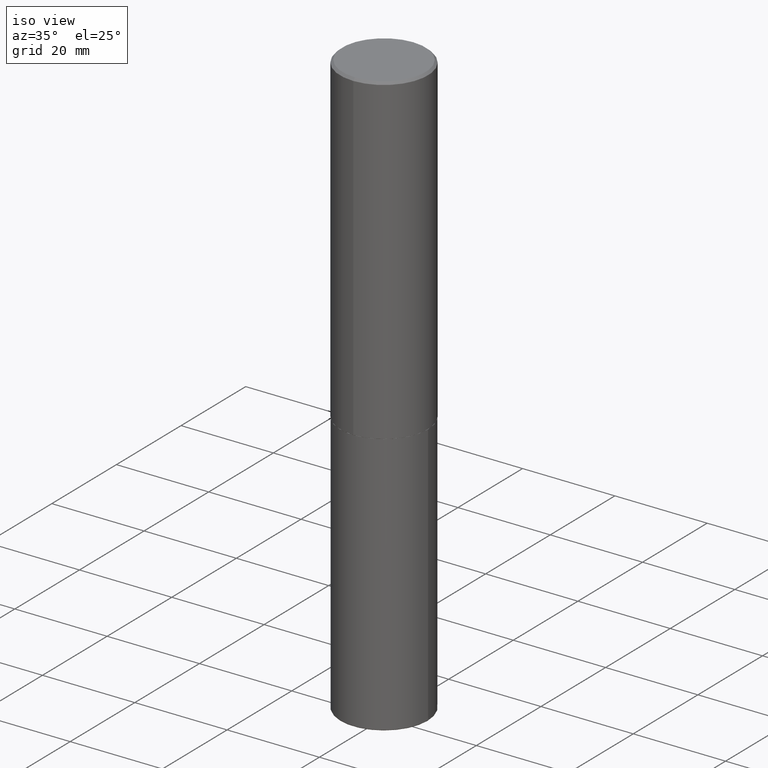
[diagram: clean part render]
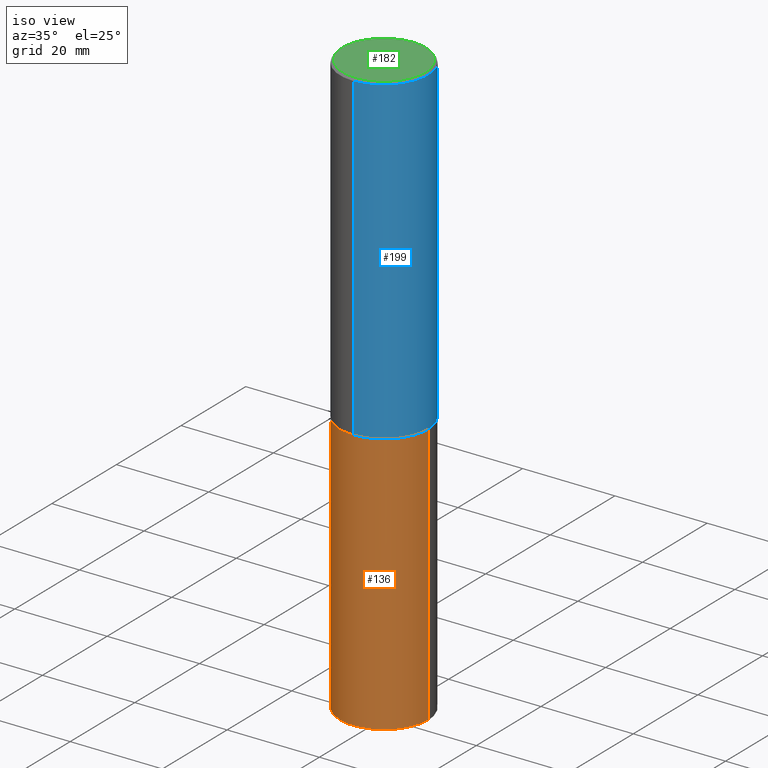
[diagram: same view with three faces highlighted in distinct colors, each labeled with its STEP entity id]
A machine part, iso view with three faces highlighted in distinct colors.
Their STEP definitions:

[orange] entity #136 — the highlighted cylindrical surface (partial cylindrical patch) has radius 9.525 mm, axis along (-0, 0, 1).
#27 = DIRECTION ( 'NONE',  ( -2.445468806185136597E-29, 3.491481338843145583E-15, 1.000000000000000000 ) ) ;
#36 = CIRCLE ( 'NONE', #397, 0.3750000000000000555 ) ;
#44 = ORIENTED_EDGE ( 'NONE', *, *, #372, .F. ) ;
#47 = CARTESIAN_POINT ( 'NONE',  ( -0.3750000000000000555, 2.664535259100376091E-15, -1.844600658845589598E-29 ) ) ;
#51 = CYLINDRICAL_SURFACE ( 'NONE', #100, 0.3750000000000000555 ) ;
#62 = ORIENTED_EDGE ( 'NONE', *, *, #395, .T. ) ;
#87 = CARTESIAN_POINT ( 'NONE',  ( 1.220288934286383144E-28, -1.742249188082729666E-14, -4.990000000000000213 ) ) ;
#89 = FACE_OUTER_BOUND ( 'NONE', #263, .T. ) ;
#100 = AXIS2_PLACEMENT_3D ( 'NONE', #121, #154, #180 ) ;
#107 = LINE ( 'NONE', #47, #353 ) ;
#121 = CARTESIAN_POINT ( 'NONE',  ( 0.000000000000000000, 0.000000000000000000, 0.000000000000000000 ) ) ;
#124 = CIRCLE ( 'NONE', #271, 0.3750000000000000555 ) ;
#136 = ADVANCED_FACE ( 'NONE', ( #89 ), #51, .T. ) ;
#141 = VERTEX_POINT ( 'NONE', #187 ) ;
#154 = DIRECTION ( 'NONE',  ( -2.445468806185136597E-29, 3.491481338843145583E-15, 1.000000000000000000 ) ) ;
#171 = VERTEX_POINT ( 'NONE', #248 ) ;
#179 = CARTESIAN_POINT ( 'NONE',  ( -0.3750000000000003886, -1.475795662172691781E-14, -4.990000000000000213 ) ) ;
#180 = DIRECTION ( 'NONE',  ( 1.000000000000000000, -6.982962677686265922E-15, 4.876176775795935793E-29 ) ) ;
#186 = EDGE_CURVE ( 'NONE', #300, #141, #124, .T. ) ;
#187 = CARTESIAN_POINT ( 'NONE',  ( 0.3750000000000003886, -2.004110288495964667E-14, -4.990000000000000213 ) ) ;
#201 = VERTEX_POINT ( 'NONE', #250 ) ;
#202 = CARTESIAN_POINT ( 'NONE',  ( 0.3750000000000000555, -2.618611004132350016E-15, 1.828566290923476203E-29 ) ) ;
#219 = DIRECTION ( 'NONE',  ( -2.445468806185136597E-29, 3.491481338843145583E-15, 1.000000000000000000 ) ) ;
#226 = CARTESIAN_POINT ( 'NONE',  ( 6.725039217009124520E-29, -9.601573681818649859E-15, -2.750000000000000000 ) ) ;
#232 = ORIENTED_EDGE ( 'NONE', *, *, #276, .F. ) ;
#234 = VECTOR ( 'NONE', #338, 39.37007874015748143 ) ;
#248 = CARTESIAN_POINT ( 'NONE',  ( -0.3750000000000000555, -1.084749752222259835E-14, -2.750000000000000000 ) ) ;
#250 = CARTESIAN_POINT ( 'NONE',  ( 0.3750000000000000555, -1.222018468595100145E-14, -2.750000000000000000 ) ) ;
#263 = EDGE_LOOP ( 'NONE', ( #44, #398, #62, #232 ) ) ;
#271 = AXIS2_PLACEMENT_3D ( 'NONE', #87, #219, #355 ) ;
#276 = EDGE_CURVE ( 'NONE', #171, #201, #36, .T. ) ;
#300 = VERTEX_POINT ( 'NONE', #179 ) ;
#312 = LINE ( 'NONE', #202, #234 ) ;
#314 = DIRECTION ( 'NONE',  ( -2.445468806185136877E-29, 3.491481338843145188E-15, 1.000000000000000000 ) ) ;
#338 = DIRECTION ( 'NONE',  ( -2.445468806185136877E-29, 3.491481338843145188E-15, 1.000000000000000000 ) ) ;
#353 = VECTOR ( 'NONE', #314, 39.37007874015748143 ) ;
#355 = DIRECTION ( 'NONE',  ( 1.000000000000000000, -6.982962677686261189E-15, 0.000000000000000000 ) ) ;
#364 = DIRECTION ( 'NONE',  ( 1.000000000000000000, -6.982962677686266711E-15, 0.000000000000000000 ) ) ;
#372 = EDGE_CURVE ( 'NONE', #300, #171, #107, .T. ) ;
#395 = EDGE_CURVE ( 'NONE', #141, #201, #312, .T. ) ;
#397 = AXIS2_PLACEMENT_3D ( 'NONE', #226, #27, #364 ) ;
#398 = ORIENTED_EDGE ( 'NONE', *, *, #186, .T. ) ;

[blue] entity #199 — the highlighted cylindrical surface (partial cylindrical patch) has radius 9.525 mm, axis along (-0, 0, 1).
#21 = DIRECTION ( 'NONE',  ( -2.446040391741596606E-29, 3.490662795793665557E-15, 1.000000000000000000 ) ) ;
#38 = VERTEX_POINT ( 'NONE', #112 ) ;
#46 = LINE ( 'NONE', #313, #352 ) ;
#53 = LINE ( 'NONE', #247, #402 ) ;
#55 = CARTESIAN_POINT ( 'NONE',  ( 0.000000000000000000, 0.000000000000000000, 0.000000000000000000 ) ) ;
#61 = EDGE_CURVE ( 'NONE', #174, #205, #46, .T. ) ;
#69 = AXIS2_PLACEMENT_3D ( 'NONE', #55, #115, #348 ) ;
#83 = DIRECTION ( 'NONE',  ( -2.446040391741596606E-29, 3.490662795793665557E-15, 1.000000000000000000 ) ) ;
#84 = DIRECTION ( 'NONE',  ( -2.446040391741596606E-29, 3.490662795793665557E-15, 1.000000000000000000 ) ) ;
#91 = EDGE_CURVE ( 'NONE', #38, #370, #53, .T. ) ;
#112 = CARTESIAN_POINT ( 'NONE',  ( 2.664535259100411196E-15, 0.3749999999999907296, -2.749000000000000998 ) ) ;
#114 = AXIS2_PLACEMENT_3D ( 'NONE', #406, #83, #204 ) ;
#115 = DIRECTION ( 'NONE',  ( -2.446040391741596606E-29, 3.490662795793665557E-15, 1.000000000000000000 ) ) ;
#123 = DIRECTION ( 'NONE',  ( -6.982962677686265922E-15, -1.000000000000000000, 2.913971193241877611E-15 ) ) ;
#149 = CARTESIAN_POINT ( 'NONE',  ( -2.572686749164323547E-15, -0.3750000000000001110, -0.01999999999999877570 ) ) ;
#153 = CYLINDRICAL_SURFACE ( 'NONE', #69, 0.3750000000000002220 ) ;
#174 = VERTEX_POINT ( 'NONE', #385 ) ;
#176 = CARTESIAN_POINT ( 'NONE',  ( 2.618611004132350411E-15, 0.3749999999999999445, -0.02000000000000139513 ) ) ;
#185 = DIRECTION ( 'NONE',  ( -2.446040391741596606E-29, 3.490662795793665557E-15, 1.000000000000000000 ) ) ;
#199 = ADVANCED_FACE ( 'NONE', ( #358 ), #153, .T. ) ;
#203 = ORIENTED_EDGE ( 'NONE', *, *, #384, .F. ) ;
#204 = DIRECTION ( 'NONE',  ( -6.982962677686265922E-15, -1.000000000000000000, 3.494488891895536035E-15 ) ) ;
#205 = VERTEX_POINT ( 'NONE', #149 ) ;
#235 = ORIENTED_EDGE ( 'NONE', *, *, #61, .F. ) ;
#247 = CARTESIAN_POINT ( 'NONE',  ( 2.664535259100376880E-15, 0.3750000000000002220, -1.308998548422625521E-15 ) ) ;
#251 = EDGE_CURVE ( 'NONE', #174, #38, #264, .T. ) ;
#259 = EDGE_LOOP ( 'NONE', ( #333, #327, #203, #235 ) ) ;
#264 = CIRCLE ( 'NONE', #298, 0.3750000000000003886 ) ;
#284 = CIRCLE ( 'NONE', #114, 0.3750000000000000555 ) ;
#289 = CARTESIAN_POINT ( 'NONE',  ( 6.724165036897648492E-29, -9.595832025636787455E-15, -2.749000000000000110 ) ) ;
#298 = AXIS2_PLACEMENT_3D ( 'NONE', #289, #185, #123 ) ;
#313 = CARTESIAN_POINT ( 'NONE',  ( -2.618611004132351594E-15, -0.3750000000000002220, 1.308998548422625521E-15 ) ) ;
#327 = ORIENTED_EDGE ( 'NONE', *, *, #91, .T. ) ;
#333 = ORIENTED_EDGE ( 'NONE', *, *, #251, .T. ) ;
#348 = DIRECTION ( 'NONE',  ( -6.982962677686266711E-15, -1.000000000000000000, 3.490662795793665951E-15 ) ) ;
#352 = VECTOR ( 'NONE', #21, 39.37007874015748143 ) ;
#358 = FACE_OUTER_BOUND ( 'NONE', #259, .T. ) ;
#370 = VERTEX_POINT ( 'NONE', #176 ) ;
#384 = EDGE_CURVE ( 'NONE', #205, #370, #284, .T. ) ;
#385 = CARTESIAN_POINT ( 'NONE',  ( -2.618611004132284935E-15, -0.3750000000000099920, -2.748999999999999222 ) ) ;
#402 = VECTOR ( 'NONE', #84, 39.37007874015748143 ) ;
#406 = CARTESIAN_POINT ( 'NONE',  ( 4.892080783483214581E-31, -6.981325591587361238E-17, -0.02000000000000008715 ) ) ;

[green] entity #182 — the highlighted planar face has unit normal (0, -0, -1).
#11 = EDGE_LOOP ( 'NONE', ( #304, #19 ) ) ;
#15 = AXIS2_PLACEMENT_3D ( 'NONE', #145, #24, #408 ) ;
#16 = VERTEX_POINT ( 'NONE', #306 ) ;
#19 = ORIENTED_EDGE ( 'NONE', *, *, #295, .T. ) ;
#24 = DIRECTION ( 'NONE',  ( -2.446040391741596606E-29, 3.490662795793665557E-15, 1.000000000000000000 ) ) ;
#31 = CIRCLE ( 'NONE', #253, 0.3549999999999999822 ) ;
#81 = CARTESIAN_POINT ( 'NONE',  ( 2.478951750578624209E-15, 0.3549999999999999822, -1.215853765202481601E-15 ) ) ;
#110 = DIRECTION ( 'NONE',  ( -6.982962677686265922E-15, -1.000000000000000000, 3.490662795793665557E-15 ) ) ;
#125 = DIRECTION ( 'NONE',  ( 6.982962677686265922E-15, 1.000000000000000000, -3.490662795793665557E-15 ) ) ;
#127 = CARTESIAN_POINT ( 'NONE',  ( 2.548781377355487113E-15, 0.3549999999999999822, -1.192522237898212341E-15 ) ) ;
#145 = CARTESIAN_POINT ( 'NONE',  ( -1.141397163745304909E-45, 1.628849886601155835E-31, 4.666305460853910467E-17 ) ) ;
#147 = CARTESIAN_POINT ( 'NONE',  ( -1.141397163745304909E-45, 1.628849886601155835E-31, 4.666305460853910467E-17 ) ) ;
#166 = CIRCLE ( 'NONE', #15, 0.3549999999999999822 ) ;
#172 = DIRECTION ( 'NONE',  ( -2.446040391741596606E-29, 3.490662795793665557E-15, 1.000000000000000000 ) ) ;
#182 = ADVANCED_FACE ( 'NONE', ( #415 ), #317, .F. ) ;
#211 = DIRECTION ( 'NONE',  ( 2.446040391741596045E-29, -3.490662795793665557E-15, -1.000000000000000000 ) ) ;
#253 = AXIS2_PLACEMENT_3D ( 'NONE', #147, #172, #110 ) ;
#267 = VERTEX_POINT ( 'NONE', #127 ) ;
#295 = EDGE_CURVE ( 'NONE', #16, #267, #31, .T. ) ;
#304 = ORIENTED_EDGE ( 'NONE', *, *, #357, .T. ) ;
#306 = CARTESIAN_POINT ( 'NONE',  ( -2.504081769186608216E-15, -0.3549999999999999822, 1.285848347115290366E-15 ) ) ;
#317 = PLANE ( 'NONE',  #340 ) ;
#340 = AXIS2_PLACEMENT_3D ( 'NONE', #81, #211, #125 ) ;
#357 = EDGE_CURVE ( 'NONE', #267, #16, #166, .T. ) ;
#408 = DIRECTION ( 'NONE',  ( -6.982962677686265922E-15, -1.000000000000000000, 3.490662795793665557E-15 ) ) ;
#415 = FACE_OUTER_BOUND ( 'NONE', #11, .T. ) ;